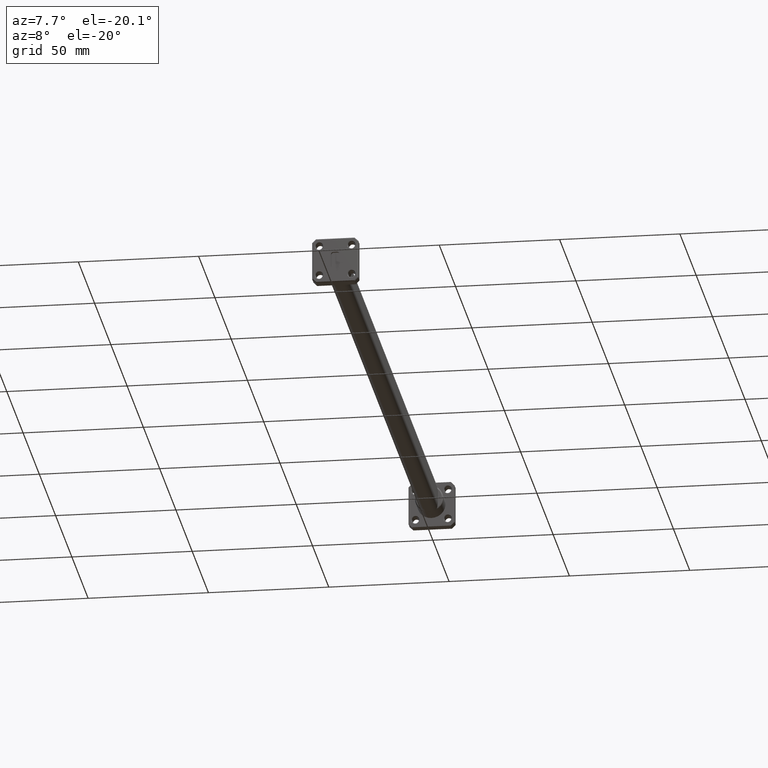
[diagram: clean part render]
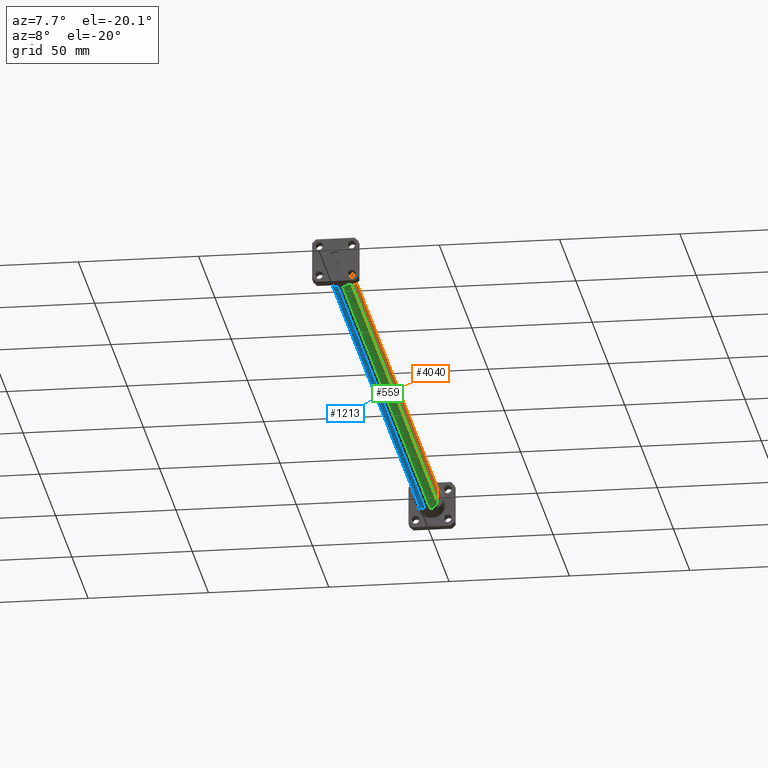
[diagram: same view with three faces highlighted in distinct colors, each labeled with its STEP entity id]
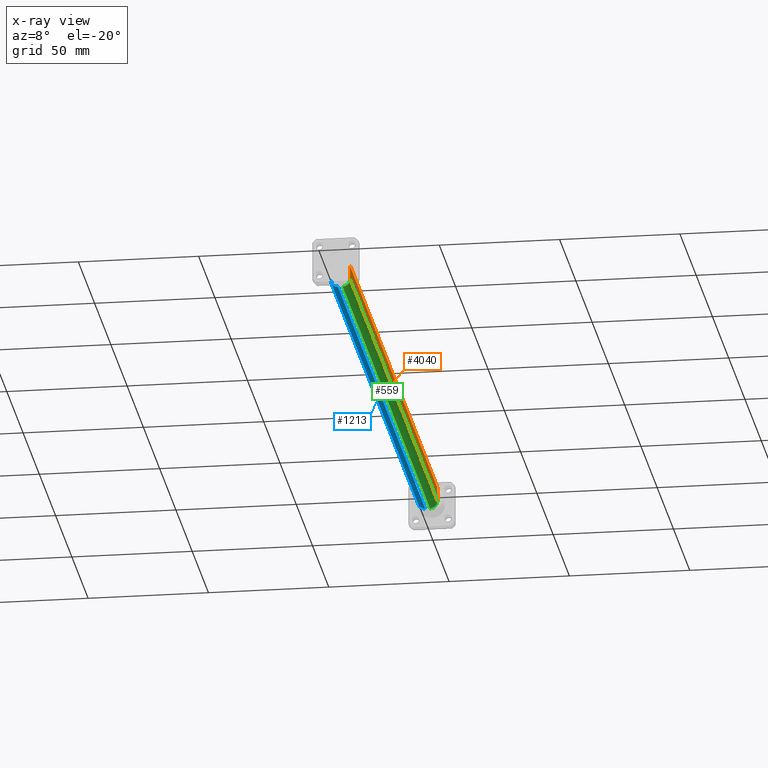
[diagram: x-ray of the same camera — body ghosted, the three highlighted faces saturated]
A machine part, auxiliary view with three faces highlighted in distinct colors.
The next image is the same camera in x-ray (body ghosted, the three faces saturated) — at least one of them is partly hidden behind the body in this view.
Their STEP definitions:

[orange] entity #4040 — the highlighted planar face has unit normal (1, 0, -0).
#7 = VERTEX_POINT ( 'NONE', #950 ) ;
#195 = PLANE ( 'NONE',  #1957 ) ;
#221 = ORIENTED_EDGE ( 'NONE', *, *, #3513, .T. ) ;
#289 = DIRECTION ( 'NONE',  ( 0.0000000000000000000, -1.000000000000000000, 0.0000000000000000000 ) ) ;
#561 = CARTESIAN_POINT ( 'NONE',  ( 0.1574803149606295300, 1.322834645669291700, -0.1181102362204736500 ) ) ;
#572 = CARTESIAN_POINT ( 'NONE',  ( 0.1574803149606295300, 0.6220472440944879700, -0.1181102362204736500 ) ) ;
#623 = LINE ( 'NONE', #2581, #1478 ) ;
#656 = VERTEX_POINT ( 'NONE', #4214 ) ;
#722 = VECTOR ( 'NONE', #1775, 39.37007874015748100 ) ;
#786 = ORIENTED_EDGE ( 'NONE', *, *, #4037, .T. ) ;
#842 = DIRECTION ( 'NONE',  ( 0.0000000000000000000, -1.000000000000000000, 0.0000000000000000000 ) ) ;
#887 = DIRECTION ( 'NONE',  ( -0.0000000000000000000, 1.000000000000000000, -0.0000000000000000000 ) ) ;
#950 = CARTESIAN_POINT ( 'NONE',  ( 0.1574803149604927200, 0.6220472440945844500, 0.1181102362204716100 ) ) ;
#1032 = LINE ( 'NONE', #572, #2791 ) ;
#1149 = CARTESIAN_POINT ( 'NONE',  ( 0.1574803149606295300, 11.18897637795275700, -0.1181102362204736500 ) ) ;
#1478 = VECTOR ( 'NONE', #289, 39.37007874015748100 ) ;
#1572 = FACE_OUTER_BOUND ( 'NONE', #1876, .T. ) ;
#1775 = DIRECTION ( 'NONE',  ( 3.441691376337985700E-015, -0.0000000000000000000, 1.000000000000000000 ) ) ;
#1876 = EDGE_LOOP ( 'NONE', ( #221, #1918, #2864, #786 ) ) ;
#1918 = ORIENTED_EDGE ( 'NONE', *, *, #3440, .T. ) ;
#1937 = CARTESIAN_POINT ( 'NONE',  ( 0.1574803149603528600, 11.18897637795256700, 0.1181102362204715900 ) ) ;
#1957 = AXIS2_PLACEMENT_3D ( 'NONE', #2476, #2817, #842 ) ;
#2476 = CARTESIAN_POINT ( 'NONE',  ( 0.1574803149606295300, 1.322834645669291700, -0.1181102362204736500 ) ) ;
#2523 = VERTEX_POINT ( 'NONE', #1937 ) ;
#2581 = CARTESIAN_POINT ( 'NONE',  ( 0.1574803149606303400, 1.322834645669291700, 0.1181102362204715900 ) ) ;
#2791 = VECTOR ( 'NONE', #3846, 39.37007874015748100 ) ;
#2817 = DIRECTION ( 'NONE',  ( 1.000000000000000000, 0.0000000000000000000, -3.441691376337985700E-015 ) ) ;
#2864 = ORIENTED_EDGE ( 'NONE', *, *, #4119, .T. ) ;
#2938 = VECTOR ( 'NONE', #887, 39.37007874015748100 ) ;
#3352 = LINE ( 'NONE', #1149, #722 ) ;
#3440 = EDGE_CURVE ( 'Defeatured_0_31+Defeatured_0_30+Defeatured_0_29+Defeatured_0_27', #7, #656, #1032, .T. ) ;
#3513 = EDGE_CURVE ( 'Defeatured_0_31+Defeatured_0_29+Defeatured_0_28+Defeatured_0_30', #2523, #7, #623, .T. ) ;
#3755 = CARTESIAN_POINT ( 'NONE',  ( 0.1574803149603520300, 11.18897637795256700, -0.1181102362204736600 ) ) ;
#3846 = DIRECTION ( 'NONE',  ( -3.441691376337985700E-015, 0.0000000000000000000, -1.000000000000000000 ) ) ;
#3988 = VERTEX_POINT ( 'NONE', #3755 ) ;
#4013 = LINE ( 'NONE', #561, #2938 ) ;
#4037 = EDGE_CURVE ( 'Defeatured_0_31+Defeatured_0_28+Defeatured_0_27+Defeatured_0_29', #3988, #2523, #3352, .T. ) ;
#4040 = ADVANCED_FACE ( 'Defeatured_0_31', ( #1572 ), #195, .T. ) ;
#4119 = EDGE_CURVE ( 'Defeatured_0_31+Defeatured_0_27+Defeatured_0_30+Defeatured_0_28', #656, #3988, #4013, .T. ) ;
#4214 = CARTESIAN_POINT ( 'NONE',  ( 0.1574803149604918900, 0.6220472440945844500, -0.1181102362204736500 ) ) ;

[blue] entity #1213 — the highlighted cylindrical surface (edge-blend (fillet) strip) has radius 3 mm, axis along (0, -1, 0).
#89 = EDGE_LOOP ( 'NONE', ( #947, #2767, #675, #1257 ) ) ;
#151 = DIRECTION ( 'NONE',  ( 0.0000000000000000000, -1.000000000000000000, 0.0000000000000000000 ) ) ;
#348 = AXIS2_PLACEMENT_3D ( 'NONE', #1881, #4209, #2227 ) ;
#459 = EDGE_CURVE ( 'Defeatured_0_11+Defeatured_0_4+Defeatured_0_6+Defeatured_0_19', #3196, #626, #3651, .T. ) ;
#626 = VERTEX_POINT ( 'NONE', #820 ) ;
#675 = ORIENTED_EDGE ( 'NONE', *, *, #1669, .T. ) ;
#767 = CARTESIAN_POINT ( 'NONE',  ( -0.1574803149605026600, 0.6220472440934171600, -0.1181102362204726900 ) ) ;
#820 = CARTESIAN_POINT ( 'NONE',  ( -0.03937007874015846500, 11.18897637795275400, -0.2362204724409455200 ) ) ;
#947 = ORIENTED_EDGE ( 'NONE', *, *, #3615, .T. ) ;
#972 = VECTOR ( 'NONE', #1645, 39.37007874015748100 ) ;
#1213 = ADVANCED_FACE ( 'Defeatured_0_11', ( #2329 ), #3980, .T. ) ;
#1257 = ORIENTED_EDGE ( 'NONE', *, *, #459, .T. ) ;
#1317 = CARTESIAN_POINT ( 'NONE',  ( -0.03937007874015846500, 0.6220472440944879700, -0.2362204724409455200 ) ) ;
#1499 = VERTEX_POINT ( 'NONE', #1317 ) ;
#1645 = DIRECTION ( 'NONE',  ( 0.0000000000000000000, -1.000000000000000000, 0.0000000000000000000 ) ) ;
#1669 = EDGE_CURVE ( 'Defeatured_0_11+Defeatured_0_6+Defeatured_0_8+Defeatured_0_4', #1772, #3196, #3312, .T. ) ;
#1772 = VERTEX_POINT ( 'NONE', #767 ) ;
#1780 = DIRECTION ( 'NONE',  ( -3.469446951953615000E-015, 0.0000000000000000000, -1.000000000000000000 ) ) ;
#1838 = LINE ( 'NONE', #3944, #972 ) ;
#1881 = CARTESIAN_POINT ( 'NONE',  ( -0.03937007874015806300, 0.6220472440944879700, -0.1181102362204730900 ) ) ;
#1933 = CIRCLE ( 'NONE', #348, 0.1181102362204724100 ) ;
#2141 = CARTESIAN_POINT ( 'NONE',  ( -0.1574803149605026600, 11.18897637795377900, -0.1181102362204726900 ) ) ;
#2227 = DIRECTION ( 'NONE',  ( -3.469446951953615000E-015, 0.0000000000000000000, -1.000000000000000000 ) ) ;
#2324 = VECTOR ( 'NONE', #2694, 39.37007874015748100 ) ;
#2329 = FACE_OUTER_BOUND ( 'NONE', #89, .T. ) ;
#2397 = CARTESIAN_POINT ( 'NONE',  ( -0.03937007874015806300, 11.18897637795275700, -0.1181102362204730900 ) ) ;
#2438 = CARTESIAN_POINT ( 'NONE',  ( -0.03937007874015806300, 1.322834645669291700, -0.1181102362204730900 ) ) ;
#2694 = DIRECTION ( 'NONE',  ( -0.0000000000000000000, 1.000000000000000000, -0.0000000000000000000 ) ) ;
#2767 = ORIENTED_EDGE ( 'NONE', *, *, #4152, .T. ) ;
#3196 = VERTEX_POINT ( 'NONE', #2141 ) ;
#3231 = AXIS2_PLACEMENT_3D ( 'NONE', #2397, #151, #4041 ) ;
#3312 = LINE ( 'NONE', #3664, #2324 ) ;
#3430 = DIRECTION ( 'NONE',  ( 0.0000000000000000000, -1.000000000000000000, 0.0000000000000000000 ) ) ;
#3432 = AXIS2_PLACEMENT_3D ( 'NONE', #2438, #3430, #1780 ) ;
#3615 = EDGE_CURVE ( 'Defeatured_0_11+Defeatured_0_19+Defeatured_0_4+Defeatured_0_8', #626, #1499, #1838, .T. ) ;
#3651 = CIRCLE ( 'NONE', #3231, 0.1181102362204724100 ) ;
#3664 = CARTESIAN_POINT ( 'NONE',  ( -0.1574803149606304700, 1.322834645669291700, -0.1181102362204726800 ) ) ;
#3944 = CARTESIAN_POINT ( 'NONE',  ( -0.03937007874015846500, 1.322834645669291700, -0.2362204724409455200 ) ) ;
#3980 = CYLINDRICAL_SURFACE ( 'NONE', #3432, 0.1181102362204724100 ) ;
#4041 = DIRECTION ( 'NONE',  ( -3.469446951953615000E-015, 0.0000000000000000000, -1.000000000000000000 ) ) ;
#4152 = EDGE_CURVE ( 'Defeatured_0_11+Defeatured_0_8+Defeatured_0_19+Defeatured_0_6', #1499, #1772, #1933, .T. ) ;
#4209 = DIRECTION ( 'NONE',  ( -0.0000000000000000000, 1.000000000000000000, -0.0000000000000000000 ) ) ;

[green] entity #559 — the highlighted cylindrical surface (edge-blend (fillet) strip) has radius 3 mm, axis along (0, -1, 0).
#51 = CARTESIAN_POINT ( 'NONE',  ( 0.03937007874015670300, 1.322834645669291700, -0.2362204724409456800 ) ) ;
#76 = FACE_OUTER_BOUND ( 'NONE', #2669, .T. ) ;
#347 = CARTESIAN_POINT ( 'NONE',  ( 0.03937007874015670300, 0.6220472440923464600, -0.2362204724407812600 ) ) ;
#391 = DIRECTION ( 'NONE',  ( 0.0000000000000000000, -1.000000000000000000, 0.0000000000000000000 ) ) ;
#493 = DIRECTION ( 'NONE',  ( -3.469446951953613800E-015, 0.0000000000000000000, -1.000000000000000000 ) ) ;
#496 = ORIENTED_EDGE ( 'NONE', *, *, #3023, .T. ) ;
#559 = ADVANCED_FACE ( 'Defeatured_0_27', ( #76 ), #2258, .T. ) ;
#561 = CARTESIAN_POINT ( 'NONE',  ( 0.1574803149606295300, 1.322834645669291700, -0.1181102362204736500 ) ) ;
#656 = VERTEX_POINT ( 'NONE', #4214 ) ;
#887 = DIRECTION ( 'NONE',  ( -0.0000000000000000000, 1.000000000000000000, -0.0000000000000000000 ) ) ;
#1406 = ORIENTED_EDGE ( 'NONE', *, *, #2419, .T. ) ;
#1463 = DIRECTION ( 'NONE',  ( 0.0000000000000000000, -1.000000000000000000, 0.0000000000000000000 ) ) ;
#1520 = CIRCLE ( 'NONE', #3339, 0.1181102362204724500 ) ;
#1672 = DIRECTION ( 'NONE',  ( -0.0000000000000000000, 1.000000000000000000, -0.0000000000000000000 ) ) ;
#1700 = CARTESIAN_POINT ( 'NONE',  ( 0.03937007874015670300, 11.18897637795375700, -0.2362204724407812300 ) ) ;
#1770 = CARTESIAN_POINT ( 'NONE',  ( 0.03937007874015710500, 1.322834645669291700, -0.1181102362204732300 ) ) ;
#1875 = VERTEX_POINT ( 'NONE', #347 ) ;
#1985 = VERTEX_POINT ( 'NONE', #1700 ) ;
#2054 = VECTOR ( 'NONE', #3620, 39.37007874015748100 ) ;
#2158 = LINE ( 'NONE', #51, #2054 ) ;
#2258 = CYLINDRICAL_SURFACE ( 'NONE', #2709, 0.1181102362204724500 ) ;
#2353 = CARTESIAN_POINT ( 'NONE',  ( 0.03937007874015710500, 11.18897637795275700, -0.1181102362204732300 ) ) ;
#2419 = EDGE_CURVE ( 'Defeatured_0_27+Defeatured_0_19+Defeatured_0_25+Defeatured_0_21', #1875, #1985, #2158, .T. ) ;
#2630 = ORIENTED_EDGE ( 'NONE', *, *, #3027, .T. ) ;
#2669 = EDGE_LOOP ( 'NONE', ( #3362, #496, #1406, #2630 ) ) ;
#2687 = DIRECTION ( 'NONE',  ( -3.469446951953613800E-015, 0.0000000000000000000, -1.000000000000000000 ) ) ;
#2709 = AXIS2_PLACEMENT_3D ( 'NONE', #1770, #1463, #493 ) ;
#2938 = VECTOR ( 'NONE', #887, 39.37007874015748100 ) ;
#3023 = EDGE_CURVE ( 'Defeatured_0_27+Defeatured_0_25+Defeatured_0_31+Defeatured_0_19', #656, #1875, #1520, .T. ) ;
#3027 = EDGE_CURVE ( 'Defeatured_0_27+Defeatured_0_21+Defeatured_0_19+Defeatured_0_31', #1985, #3988, #3199, .T. ) ;
#3199 = CIRCLE ( 'NONE', #3550, 0.1181102362204724500 ) ;
#3339 = AXIS2_PLACEMENT_3D ( 'NONE', #3660, #1672, #3993 ) ;
#3362 = ORIENTED_EDGE ( 'NONE', *, *, #4119, .F. ) ;
#3550 = AXIS2_PLACEMENT_3D ( 'NONE', #2353, #391, #2687 ) ;
#3620 = DIRECTION ( 'NONE',  ( -0.0000000000000000000, 1.000000000000000000, -0.0000000000000000000 ) ) ;
#3660 = CARTESIAN_POINT ( 'NONE',  ( 0.03937007874015710500, 0.6220472440944879700, -0.1181102362204732300 ) ) ;
#3755 = CARTESIAN_POINT ( 'NONE',  ( 0.1574803149603520300, 11.18897637795256700, -0.1181102362204736600 ) ) ;
#3988 = VERTEX_POINT ( 'NONE', #3755 ) ;
#3993 = DIRECTION ( 'NONE',  ( -3.469446951953613800E-015, 0.0000000000000000000, -1.000000000000000000 ) ) ;
#4013 = LINE ( 'NONE', #561, #2938 ) ;
#4119 = EDGE_CURVE ( 'Defeatured_0_31+Defeatured_0_27+Defeatured_0_30+Defeatured_0_28', #656, #3988, #4013, .T. ) ;
#4214 = CARTESIAN_POINT ( 'NONE',  ( 0.1574803149604918900, 0.6220472440945844500, -0.1181102362204736500 ) ) ;